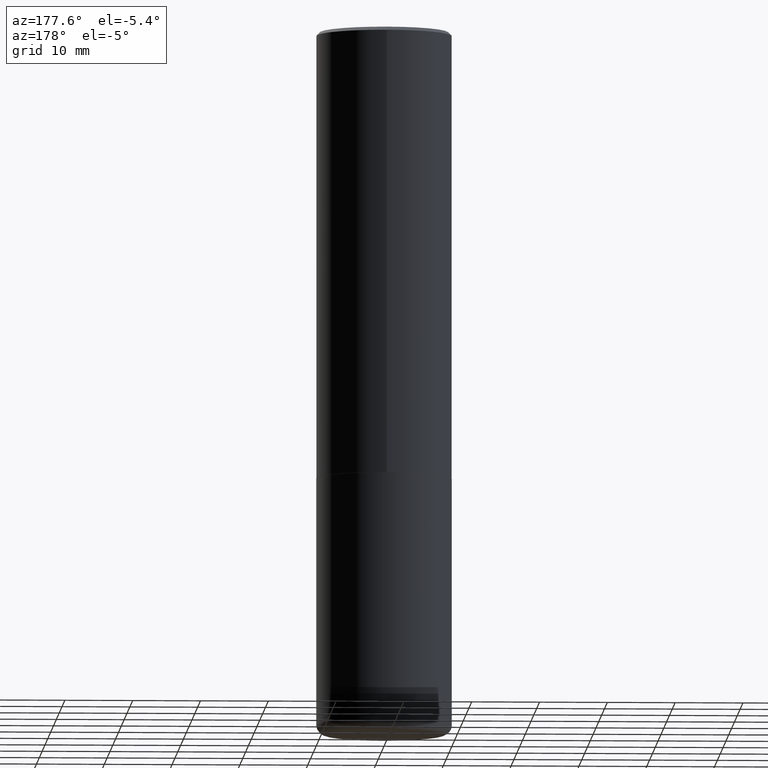
[diagram: clean part render]
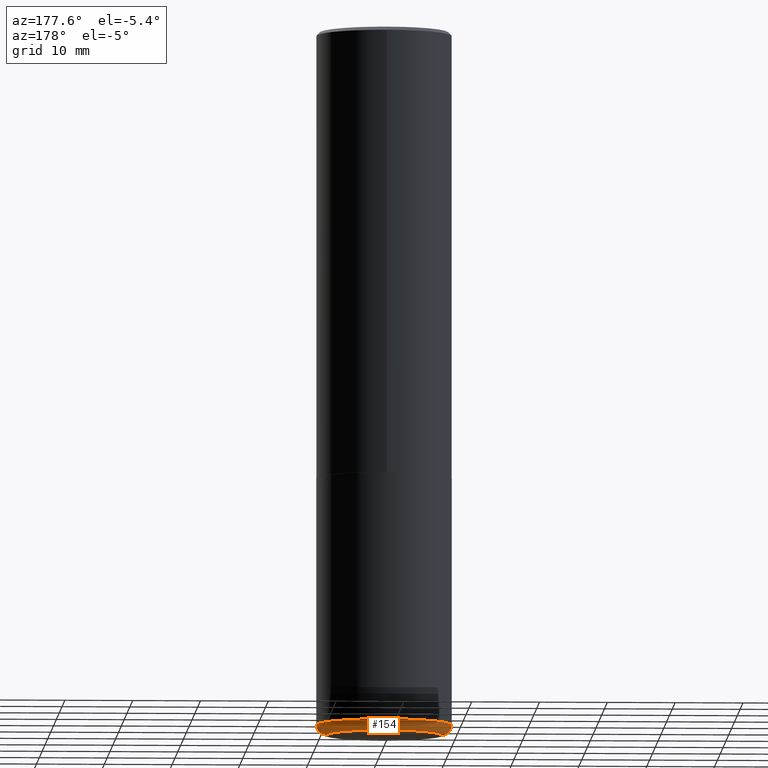
[diagram: same view with one face highlighted and labeled with its STEP entity id]
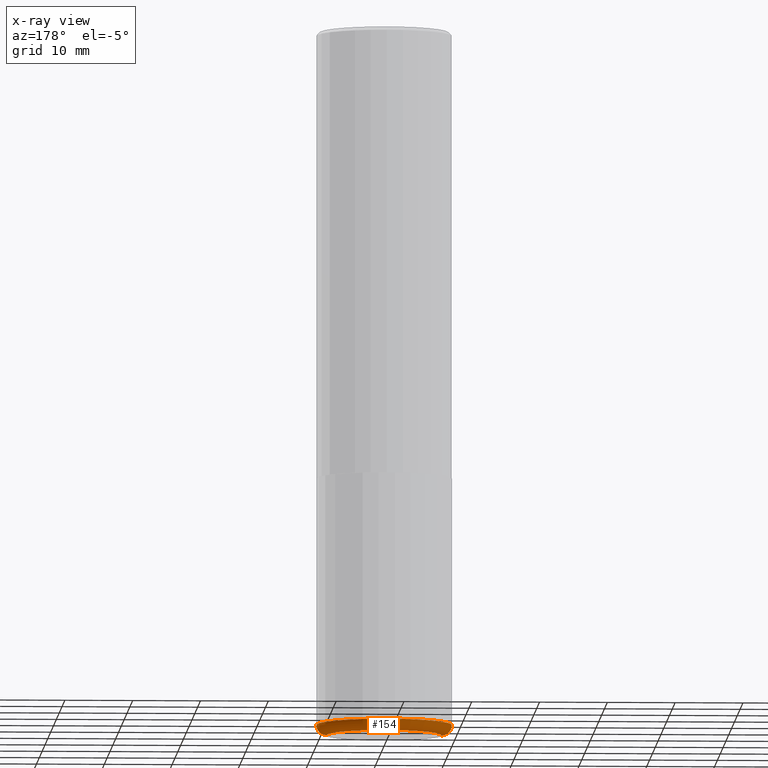
[diagram: x-ray of the same camera — body ghosted, the highlighted face saturated]
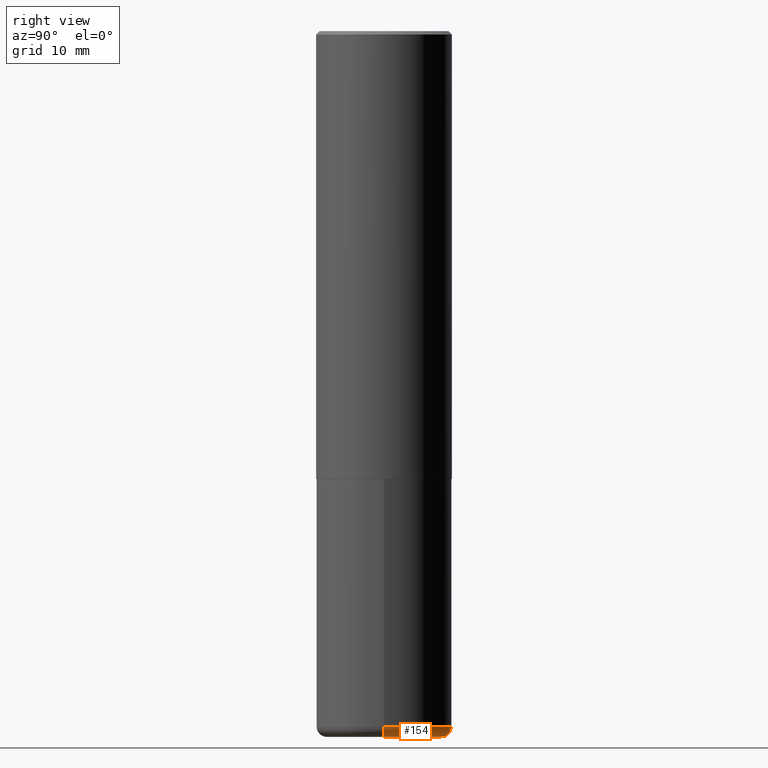
[diagram: same view with one face highlighted and labeled with its STEP entity id]
A machine part, auxiliary view. The second image highlights one B-rep face of the part: STEP entity #154.
The next image is the same camera in x-ray: the body ghosted, the highlighted face saturated — about 0% of this face is hidden behind the body in this view.
A second angle (right view) of the same face is appended — the face is thin or edge-on in the first view.
In plain terms, the highlighted toroidal blend (fillet) surface has major radius 8.4811 mm and minor (blend) radius 1.5189 mm.
Its self-contained STEP definition (entity closure, byte-faithful):
#4 = DIRECTION ( 'NONE',  ( -6.982962677686266711E-15, -1.000000000000000000, 3.491481338843145583E-15 ) ) ;
#17 = AXIS2_PLACEMENT_3D ( 'NONE', #221, #189, #61 ) ;
#44 = DIRECTION ( 'NONE',  ( -2.445468806185136597E-29, 3.491481338843145583E-15, 1.000000000000000000 ) ) ;
#50 = CARTESIAN_POINT ( 'NONE',  ( 0.3937000000000001054, -1.683627216403552499E-14, -4.034700000000000841 ) ) ;
#61 = DIRECTION ( 'NONE',  ( 1.000000000000000000, -6.982962677686266711E-15, 0.000000000000000000 ) ) ;
#85 = VERTEX_POINT ( 'NONE', #373 ) ;
#118 = CIRCLE ( 'NONE', #404, 0.05980000000000013777 ) ;
#120 = EDGE_CURVE ( 'NONE', #285, #215, #248, .T. ) ;
#125 = EDGE_CURVE ( 'NONE', #85, #285, #288, .T. ) ;
#126 = CARTESIAN_POINT ( 'NONE',  ( 9.866732992315171563E-29, -1.408707975783044020E-14, -4.034700000000000841 ) ) ;
#139 = CARTESIAN_POINT ( 'NONE',  ( -0.3937000000000001054, -1.128967300714292462E-14, -4.034700000000000841 ) ) ;
#154 = ADVANCED_FACE ( 'NONE', ( #254 ), #245, .T. ) ;
#159 = DIRECTION ( 'NONE',  ( -2.445468806185136597E-29, 3.491481338843145583E-15, 1.000000000000000000 ) ) ;
#167 = DIRECTION ( 'NONE',  ( 1.000000000000000000, -6.982962677686267499E-15, 0.000000000000000000 ) ) ;
#175 = EDGE_CURVE ( 'NONE', #85, #200, #118, .T. ) ;
#189 = DIRECTION ( 'NONE',  ( -2.445468806185136597E-29, 3.491481338843145583E-15, 1.000000000000000000 ) ) ;
#200 = VERTEX_POINT ( 'NONE', #50 ) ;
#211 = EDGE_CURVE ( 'NONE', #200, #215, #326, .T. ) ;
#215 = VERTEX_POINT ( 'NONE', #139 ) ;
#221 = CARTESIAN_POINT ( 'NONE',  ( 1.001297202692504327E-28, -1.429587034189326465E-14, -4.094500000000000917 ) ) ;
#231 = CARTESIAN_POINT ( 'NONE',  ( 9.866732992315171563E-29, -1.408707975783044020E-14, -4.034700000000000841 ) ) ;
#245 = TOROIDAL_SURFACE ( 'NONE', #298, 0.3339000000000000301, 0.05980000000000013777 ) ;
#248 = CIRCLE ( 'NONE', #257, 0.05980000000000013777 ) ;
#254 = FACE_OUTER_BOUND ( 'NONE', #350, .T. ) ;
#257 = AXIS2_PLACEMENT_3D ( 'NONE', #381, #416, #315 ) ;
#264 = DIRECTION ( 'NONE',  ( 1.000000000000000000, -6.982962677686265922E-15, 4.883557194083112340E-29 ) ) ;
#278 = ORIENTED_EDGE ( 'NONE', *, *, #211, .F. ) ;
#280 = CARTESIAN_POINT ( 'NONE',  ( -0.3339000000000000301, -1.160652057716660628E-14, -4.094500000000000917 ) ) ;
#285 = VERTEX_POINT ( 'NONE', #280 ) ;
#288 = CIRCLE ( 'NONE', #17, 0.3339000000000000301 ) ;
#298 = AXIS2_PLACEMENT_3D ( 'NONE', #126, #159, #264 ) ;
#315 = DIRECTION ( 'NONE',  ( -1.000000000000000000, 7.105427357601017636E-15, 0.000000000000000000 ) ) ;
#326 = CIRCLE ( 'NONE', #372, 0.3937000000000000499 ) ;
#332 = DIRECTION ( 'NONE',  ( 1.000000000000000000, -6.982962677686261189E-15, 0.000000000000000000 ) ) ;
#350 = EDGE_LOOP ( 'NONE', ( #417, #390, #278, #380 ) ) ;
#372 = AXIS2_PLACEMENT_3D ( 'NONE', #231, #44, #167 ) ;
#373 = CARTESIAN_POINT ( 'NONE',  ( 0.3339000000000000301, -1.662748157997270843E-14, -4.094500000000000917 ) ) ;
#380 = ORIENTED_EDGE ( 'NONE', *, *, #175, .F. ) ;
#381 = CARTESIAN_POINT ( 'NONE',  ( -0.3339000000000000301, -1.171457756312746665E-14, -4.034700000000000841 ) ) ;
#390 = ORIENTED_EDGE ( 'NONE', *, *, #120, .T. ) ;
#393 = CARTESIAN_POINT ( 'NONE',  ( 0.3339000000000000301, -1.641869099590988556E-14, -4.034700000000000841 ) ) ;
#404 = AXIS2_PLACEMENT_3D ( 'NONE', #393, #4, #332 ) ;
#416 = DIRECTION ( 'NONE',  ( 7.105427357601001859E-15, 1.000000000000000000, -3.491481338843145583E-15 ) ) ;
#417 = ORIENTED_EDGE ( 'NONE', *, *, #125, .T. ) ;